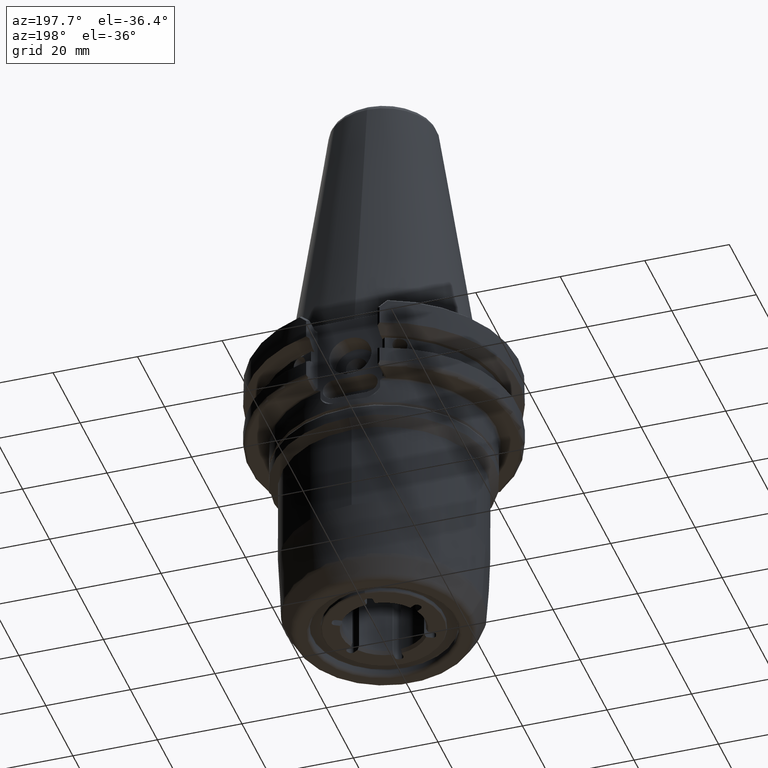
[diagram: clean part render]
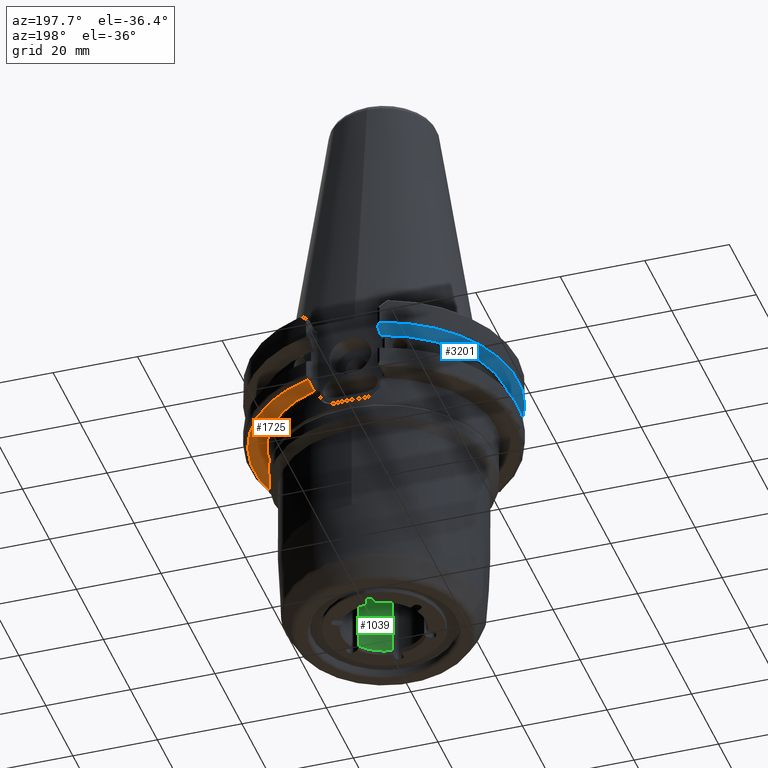
[diagram: same view with three faces highlighted in distinct colors, each labeled with its STEP entity id]
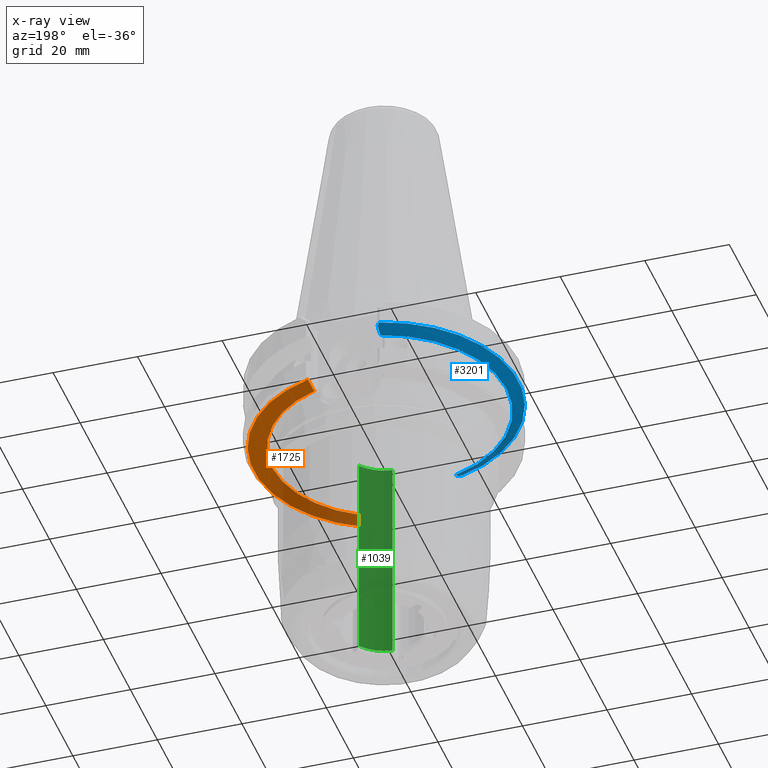
[diagram: x-ray of the same camera — body ghosted, the three highlighted faces saturated]
A machine part, auxiliary view with three faces highlighted in distinct colors.
The next image is the same camera in x-ray (body ghosted, the three faces saturated) — at least one of them is partly hidden behind the body in this view.
Their STEP definitions:

[orange] entity #1725 — the highlighted planar face has unit normal (-0, 0, -1).
#33 = VECTOR ( 'NONE', #4706, 1000.000000000000000 ) ;
#182 = CARTESIAN_POINT ( 'NONE',  ( 7.550000000021373836, 25.51899999998639856, -19.04999999996393001 ) ) ;
#399 = ORIENTED_EDGE ( 'NONE', *, *, #2949, .T. ) ;
#424 = LINE ( 'NONE', #1434, #2763 ) ;
#688 = ORIENTED_EDGE ( 'NONE', *, *, #1184, .F. ) ;
#789 = VERTEX_POINT ( 'NONE', #2682 ) ;
#984 = VERTEX_POINT ( 'NONE', #3062 ) ;
#996 = DIRECTION ( 'NONE',  ( -3.491481338843133355E-15, 0.000000000000000000, -1.000000000000000000 ) ) ;
#1118 = DIRECTION ( 'NONE',  ( -3.491481338843133355E-15, 0.000000000000000000, -1.000000000000000000 ) ) ;
#1184 = EDGE_CURVE ( 'NONE', #1957, #789, #5613, .T. ) ;
#1434 = CARTESIAN_POINT ( 'NONE',  ( 8.049999999999933209, -25.14274249159999997, -19.05000000000002913 ) ) ;
#1491 = ORIENTED_EDGE ( 'NONE', *, *, #5223, .T. ) ;
#1526 = CARTESIAN_POINT ( 'NONE',  ( 3.883126117126203397E-11, 2.100986051800650115E-11, -19.05000000000000071 ) ) ;
#1547 = CIRCLE ( 'NONE', #4897, 0.9999999999985550447 ) ;
#1550 = CARTESIAN_POINT ( 'NONE',  ( 5.760423464029932994, -35.59910446700000364, -19.05000000000002203 ) ) ;
#1603 = ORIENTED_EDGE ( 'NONE', *, *, #5892, .T. ) ;
#1725 = ADVANCED_FACE ( 'NONE', ( #4267 ), #2014, .T. ) ;
#1957 = VERTEX_POINT ( 'NONE', #5081 ) ;
#2014 = PLANE ( 'NONE',  #2654 ) ;
#2046 = DIRECTION ( 'NONE',  ( 1.610394578466144233E-11, -1.366643864814189921E-11, 1.000000000000000000 ) ) ;
#2654 = AXIS2_PLACEMENT_3D ( 'NONE', #1550, #1118, #2961 ) ;
#2670 = CARTESIAN_POINT ( 'NONE',  ( 8.049999999999931433, -29.67760098121023304, -19.04999999998627658 ) ) ;
#2682 = CARTESIAN_POINT ( 'NONE',  ( 8.049999999999931433, -25.14274249146226836, -19.05000000000002913 ) ) ;
#2763 = VECTOR ( 'NONE', #5509, 1000.000000000000000 ) ;
#2885 = CARTESIAN_POINT ( 'NONE',  ( 8.549999999999934985, 25.51899999999999835, -19.05000000000003268 ) ) ;
#2949 = EDGE_CURVE ( 'NONE', #1957, #984, #1547, .T. ) ;
#2961 = DIRECTION ( 'NONE',  ( 0.000000000000000000, 1.000000000000000000, 0.000000000000000000 ) ) ;
#2965 = EDGE_LOOP ( 'NONE', ( #688, #399, #1491, #1603, #5436 ) ) ;
#3062 = CARTESIAN_POINT ( 'NONE',  ( 8.549999999999934985, 25.51899999999999835, -19.05000000000003268 ) ) ;
#3224 = AXIS2_PLACEMENT_3D ( 'NONE', #1526, #5602, #3765 ) ;
#3333 = LINE ( 'NONE', #2885, #33 ) ;
#3730 = DIRECTION ( 'NONE',  ( 0.000000000000000000, -1.000000000000000000, 0.000000000000000000 ) ) ;
#3765 = DIRECTION ( 'NONE',  ( 0.3049242424229138826, -0.9523766095315507885, -9.199291160533140034E-16 ) ) ;
#3838 = VERTEX_POINT ( 'NONE', #2670 ) ;
#3874 = CARTESIAN_POINT ( 'NONE',  ( 8.549999999999934985, 29.53743387639999796, -19.05000000000003268 ) ) ;
#3880 = DIRECTION ( 'NONE',  ( 1.000000000000000000, 1.355859868825431648E-11, -1.610517275099194798E-11 ) ) ;
#4242 = CIRCLE ( 'NONE', #5399, 30.75000000000000000 ) ;
#4267 = FACE_OUTER_BOUND ( 'NONE', #2965, .T. ) ;
#4706 = DIRECTION ( 'NONE',  ( 0.000000000000000000, 1.000000000000000000, 0.000000000000000000 ) ) ;
#4897 = AXIS2_PLACEMENT_3D ( 'NONE', #182, #2046, #3880 ) ;
#5005 = EDGE_CURVE ( 'NONE', #789, #3838, #424, .T. ) ;
#5081 = CARTESIAN_POINT ( 'NONE',  ( 8.417187790095955080, 25.02051836533160056, -19.05028144388952782 ) ) ;
#5223 = EDGE_CURVE ( 'NONE', #984, #5619, #3333, .T. ) ;
#5399 = AXIS2_PLACEMENT_3D ( 'NONE', #5935, #996, #3730 ) ;
#5436 = ORIENTED_EDGE ( 'NONE', *, *, #5005, .F. ) ;
#5509 = DIRECTION ( 'NONE',  ( 0.000000000000000000, -1.000000000000000000, -0.000000000000000000 ) ) ;
#5602 = DIRECTION ( 'NONE',  ( -3.560579731810457881E-15, -1.104369626173822000E-16, -1.000000000000000000 ) ) ;
#5613 = CIRCLE ( 'NONE', #3224, 26.39999999985630552 ) ;
#5619 = VERTEX_POINT ( 'NONE', #3874 ) ;
#5892 = EDGE_CURVE ( 'NONE', #5619, #3838, #4242, .T. ) ;
#5935 = CARTESIAN_POINT ( 'NONE',  ( -6.651271950496168726E-14, 0.000000000000000000, -19.05000000000000071 ) ) ;

[blue] entity #3201 — the highlighted conical surface has half-angle 60 deg.
#66 = DIRECTION ( 'NONE',  ( -0.4891490509609230930, 0.8722002097821510702, -5.465683638967633553E-13 ) ) ;
#90 = VERTEX_POINT ( 'NONE', #2316 ) ;
#273 = CARTESIAN_POINT ( 'NONE',  ( -8.686800000000026500, -30.53853313049999940, -7.574987931459968848 ) ) ;
#307 = CARTESIAN_POINT ( 'NONE',  ( -8.050000000000029132, -29.32154646100000051, -8.350998999559973157 ) ) ;
#485 = AXIS2_PLACEMENT_3D ( 'NONE', #3136, #836, #1661 ) ;
#680 = DIRECTION ( 'NONE',  ( -0.3339387647164293038, -0.2521960137011561853, -0.9082301867329182210 ) ) ;
#788 = EDGE_CURVE ( 'NONE', #1823, #5764, #5073, .T. ) ;
#824 = CIRCLE ( 'NONE', #4175, 31.75000000000000000 ) ;
#836 = DIRECTION ( 'NONE',  ( -3.491481338843133355E-15, 0.000000000000000000, -1.000000000000000000 ) ) ;
#880 = EDGE_CURVE ( 'NONE', #2244, #1854, #5481, .T. ) ;
#938 = DIRECTION ( 'NONE',  ( -3.699995415010818865E-13, 4.190782393011300056E-13, 1.000000000000000000 ) ) ;
#983 = CARTESIAN_POINT ( 'NONE',  ( 56.58372664029499788, 18.75483550502110219, 169.9445721262358120 ) ) ;
#1005 = CARTESIAN_POINT ( 'NONE',  ( -8.050000000000032685, -27.84806340740000152, -9.169499999999970896 ) ) ;
#1081 = VERTEX_POINT ( 'NONE', #3686 ) ;
#1262 = CARTESIAN_POINT ( 'NONE',  ( -8.050000000000027356, -30.05761134888178887, -7.940498790696276288 ) ) ;
#1333 = DIRECTION ( 'NONE',  ( -3.491481338843133355E-15, 0.000000000000000000, -1.000000000000000000 ) ) ;
#1381 = CARTESIAN_POINT ( 'NONE',  ( -8.050000000000029132, 29.32155888660000187, -8.350992069859971778 ) ) ;
#1661 = DIRECTION ( 'NONE',  ( 0.000000000000000000, -1.000000000000000000, 0.000000000000000000 ) ) ;
#1823 = VERTEX_POINT ( 'NONE', #1005 ) ;
#1854 = VERTEX_POINT ( 'NONE', #273 ) ;
#1896 = CARTESIAN_POINT ( 'NONE',  ( 56.58372663730419561, -18.75483550387110299, 169.9445721241487774 ) ) ;
#2069 = ORIENTED_EDGE ( 'NONE', *, *, #3068, .F. ) ;
#2244 = VERTEX_POINT ( 'NONE', #1262 ) ;
#2316 = CARTESIAN_POINT ( 'NONE',  ( -8.050000000000027356, 30.05761134889999653, -7.940498790729972001 ) ) ;
#2582 = CARTESIAN_POINT ( 'NONE',  ( -8.050000000000030909, -28.58506422129999791, -8.760728386379973642 ) ) ;
#2624 = AXIS2_PLACEMENT_3D ( 'NONE', #983, #2833, #680 ) ;
#2799 = B_SPLINE_CURVE_WITH_KNOTS ( 'NONE', 3,
 ( #4452, #307, #2582, #4812 ),
 .UNSPECIFIED., .F., .F.,
 ( 4, 4 ),
 ( 0.01724614503869999899, 0.01977450705000000086 ),
 .UNSPECIFIED. ) ;
#2807 = EDGE_CURVE ( 'NONE', #1081, #90, #3460, .T. ) ;
#2833 = DIRECTION ( 'NONE',  ( -0.6026607652198374687, 0.7979974950240384945, 4.725673926429008573E-09 ) ) ;
#3068 = EDGE_CURVE ( 'NONE', #2244, #1823, #2799, .T. ) ;
#3136 = CARTESIAN_POINT ( 'NONE',  ( -3.201513813652211436E-14, 0.000000000000000000, -9.169500000000001094 ) ) ;
#3201 = ADVANCED_FACE ( 'NONE', ( #3233 ), #4034, .T. ) ;
#3233 = FACE_OUTER_BOUND ( 'NONE', #4469, .T. ) ;
#3460 = CIRCLE ( 'NONE', #5379, 195.4565732871930379 ) ;
#3571 = ORIENTED_EDGE ( 'NONE', *, *, #2807, .T. ) ;
#3686 = CARTESIAN_POINT ( 'NONE',  ( -8.686800000000026500, 30.53853313049999940, -7.574987931459968848 ) ) ;
#3689 = EDGE_CURVE ( 'NONE', #5764, #90, #5149, .T. ) ;
#4034 = CONICAL_SURFACE ( 'NONE', #4799, 4.405297385837348756, 1.047197551196810350 ) ;
#4051 = CARTESIAN_POINT ( 'NONE',  ( -2.644792900465453572E-14, 0.000000000000000000, -7.574987931459999047 ) ) ;
#4101 = DIRECTION ( 'NONE',  ( -0.3306807519966851183, 0.2497355091816169381, -0.9101002228945476169 ) ) ;
#4175 = AXIS2_PLACEMENT_3D ( 'NONE', #4051, #1333, #4565 ) ;
#4180 = CARTESIAN_POINT ( 'NONE',  ( 5.986909461762864213E-12, -4.070077608275820646E-12, -23.36245934663169876 ) ) ;
#4270 = ORIENTED_EDGE ( 'NONE', *, *, #4637, .T. ) ;
#4452 = CARTESIAN_POINT ( 'NONE',  ( -8.050000000000027356, -30.05761134888178887, -7.940498790696276288 ) ) ;
#4469 = EDGE_LOOP ( 'NONE', ( #4270, #3571, #4721, #5867, #2069, #4884 ) ) ;
#4565 = DIRECTION ( 'NONE',  ( 0.000000000000000000, -1.000000000000000000, 0.000000000000000000 ) ) ;
#4615 = CARTESIAN_POINT ( 'NONE',  ( -8.050000000000027356, 30.05761134889999653, -7.940498790729972001 ) ) ;
#4637 = EDGE_CURVE ( 'NONE', #1854, #1081, #824, .T. ) ;
#4721 = ORIENTED_EDGE ( 'NONE', *, *, #3689, .F. ) ;
#4799 = AXIS2_PLACEMENT_3D ( 'NONE', #4180, #938, #66 ) ;
#4812 = CARTESIAN_POINT ( 'NONE',  ( -8.050000000000032685, -27.84806340740000152, -9.169499999999970896 ) ) ;
#4884 = ORIENTED_EDGE ( 'NONE', *, *, #880, .T. ) ;
#4998 = DIRECTION ( 'NONE',  ( -0.6026607652213665789, -0.7979974950228834185, 4.721572909119311761E-09 ) ) ;
#5002 = CARTESIAN_POINT ( 'NONE',  ( -8.050000000000030909, 27.84806340740000152, -9.169499999999972673 ) ) ;
#5073 = CIRCLE ( 'NONE', #485, 28.98822408400000228 ) ;
#5127 = CARTESIAN_POINT ( 'NONE',  ( -8.050000000000030909, 28.58507626699999804, -8.760721705359973299 ) ) ;
#5149 = B_SPLINE_CURVE_WITH_KNOTS ( 'NONE', 3,
 ( #5002, #5127, #1381, #4615 ),
 .UNSPECIFIED., .F., .F.,
 ( 4, 4 ),
 ( 0.01290697859669999968, 0.01543519421539999922 ),
 .UNSPECIFIED. ) ;
#5379 = AXIS2_PLACEMENT_3D ( 'NONE', #1896, #4998, #4101 ) ;
#5416 = CARTESIAN_POINT ( 'NONE',  ( -8.050000000000030909, 27.84806340740000152, -9.169499999999972673 ) ) ;
#5481 = CIRCLE ( 'NONE', #2624, 195.4565732903779178 ) ;
#5764 = VERTEX_POINT ( 'NONE', #5416 ) ;
#5867 = ORIENTED_EDGE ( 'NONE', *, *, #788, .F. ) ;

[green] entity #1039 — the highlighted cylindrical surface (partial cylindrical patch) has radius 9.525 mm, axis along (0, 0, 1).
#7 = CARTESIAN_POINT ( 'NONE',  ( 0.000000000000000000, 0.000000000000000000, -69.17727586640002357 ) ) ;
#48 = CIRCLE ( 'NONE', #1991, 9.524999999999758771 ) ;
#132 = VECTOR ( 'NONE', #4020, 1000.000000000000000 ) ;
#290 = LINE ( 'NONE', #1821, #132 ) ;
#313 = CYLINDRICAL_SURFACE ( 'NONE', #1699, 9.524999999999845812 ) ;
#325 = EDGE_CURVE ( 'NONE', #1083, #4414, #4875, .T. ) ;
#770 = FACE_OUTER_BOUND ( 'NONE', #1297, .T. ) ;
#1039 = ADVANCED_FACE ( 'NONE', ( #770 ), #313, .F. ) ;
#1083 = VERTEX_POINT ( 'NONE', #2702 ) ;
#1253 = DIRECTION ( 'NONE',  ( 1.000000000000000000, 0.000000000000000000, 0.000000000000000000 ) ) ;
#1297 = EDGE_LOOP ( 'NONE', ( #2877, #4785, #2718, #2181 ) ) ;
#1306 = VECTOR ( 'NONE', #3471, 1000.000000000000000 ) ;
#1699 = AXIS2_PLACEMENT_3D ( 'NONE', #3544, #5366, #1253 ) ;
#1821 = CARTESIAN_POINT ( 'NONE',  ( 0.9999999999999347189, -9.472361110090000480, -18.68874953740000322 ) ) ;
#1991 = AXIS2_PLACEMENT_3D ( 'NONE', #7, #2336, #5507 ) ;
#2041 = CARTESIAN_POINT ( 'NONE',  ( 1.000000000000123679, -9.472361110092624159, -69.17727586640002357 ) ) ;
#2102 = CIRCLE ( 'NONE', #4571, 9.524999999999934630 ) ;
#2181 = ORIENTED_EDGE ( 'NONE', *, *, #2262, .F. ) ;
#2262 = EDGE_CURVE ( 'NONE', #4569, #5577, #290, .T. ) ;
#2336 = DIRECTION ( 'NONE',  ( -0.000000000000000000, -0.000000000000000000, 1.000000000000000000 ) ) ;
#2515 = CARTESIAN_POINT ( 'NONE',  ( 7.703305355159934642, -5.602205958830000831, -18.68874953740002809 ) ) ;
#2702 = CARTESIAN_POINT ( 'NONE',  ( 7.703305355157894496, -5.602205958833936350, -18.68874953740003164 ) ) ;
#2718 = ORIENTED_EDGE ( 'NONE', *, *, #4000, .F. ) ;
#2877 = ORIENTED_EDGE ( 'NONE', *, *, #4970, .T. ) ;
#3203 = CARTESIAN_POINT ( 'NONE',  ( 0.000000000000000000, 0.000000000000000000, -18.68874953740003164 ) ) ;
#3471 = DIRECTION ( 'NONE',  ( -3.491481338843133355E-15, 0.000000000000000000, -1.000000000000000000 ) ) ;
#3544 = CARTESIAN_POINT ( 'NONE',  ( 0.000000000000000000, 0.000000000000000000, 68.80717186763712334 ) ) ;
#3680 = DIRECTION ( 'NONE',  ( -0.000000000000000000, -0.000000000000000000, 1.000000000000000000 ) ) ;
#3868 = CARTESIAN_POINT ( 'NONE',  ( 1.000000000000137890, -9.472361110092798242, -18.68874953740003164 ) ) ;
#4000 = EDGE_CURVE ( 'NONE', #5577, #4414, #48, .T. ) ;
#4020 = DIRECTION ( 'NONE',  ( -3.491481338843133355E-15, 0.000000000000000000, -1.000000000000000000 ) ) ;
#4122 = DIRECTION ( 'NONE',  ( 1.000000000000000000, 0.000000000000000000, 0.000000000000000000 ) ) ;
#4406 = CARTESIAN_POINT ( 'NONE',  ( 7.703305355160299683, -5.602205958830330346, -69.17727586640002357 ) ) ;
#4414 = VERTEX_POINT ( 'NONE', #4406 ) ;
#4569 = VERTEX_POINT ( 'NONE', #3868 ) ;
#4571 = AXIS2_PLACEMENT_3D ( 'NONE', #3203, #3680, #4122 ) ;
#4785 = ORIENTED_EDGE ( 'NONE', *, *, #325, .T. ) ;
#4875 = LINE ( 'NONE', #2515, #1306 ) ;
#4970 = EDGE_CURVE ( 'NONE', #4569, #1083, #2102, .T. ) ;
#5366 = DIRECTION ( 'NONE',  ( -0.000000000000000000, -0.000000000000000000, 1.000000000000000000 ) ) ;
#5507 = DIRECTION ( 'NONE',  ( 1.000000000000000000, 0.000000000000000000, 0.000000000000000000 ) ) ;
#5577 = VERTEX_POINT ( 'NONE', #2041 ) ;